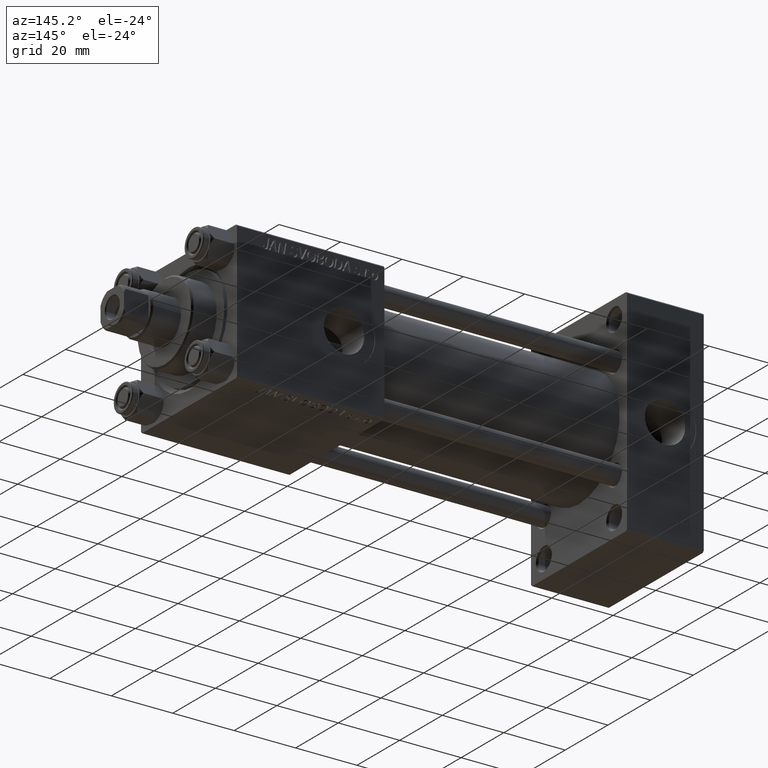
[diagram: clean part render]
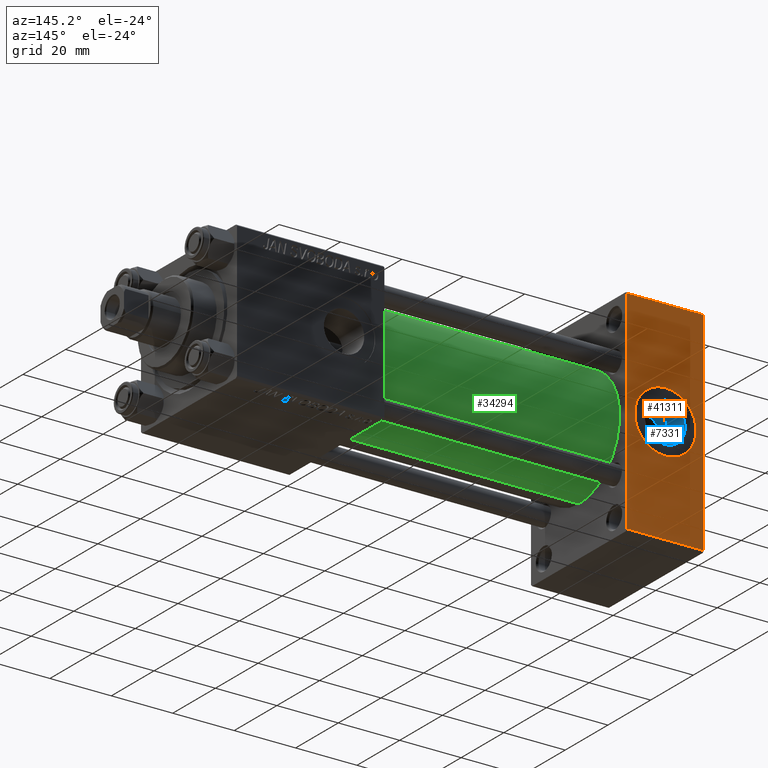
[diagram: same view with three faces highlighted in distinct colors, each labeled with its STEP entity id]
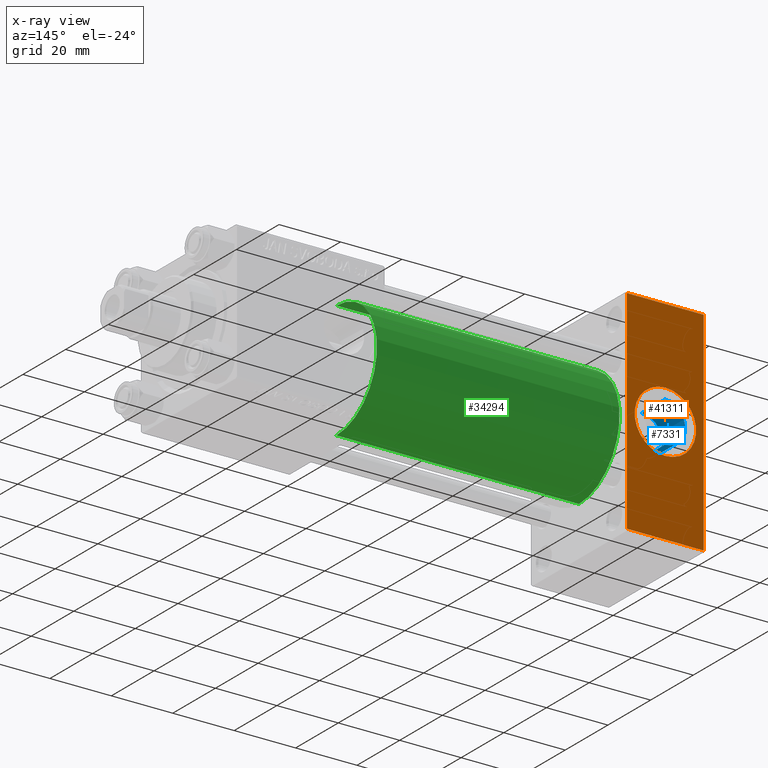
[diagram: x-ray of the same camera — body ghosted, the three highlighted faces saturated]
A machine part, auxiliary view with three faces highlighted in distinct colors.
The next image is the same camera in x-ray (body ghosted, the three faces saturated) — at least one of them is partly hidden behind the body in this view.
Their STEP definitions:

[orange] entity #41311 — the highlighted planar face has unit normal (0, 1, 0).
#345 = VECTOR ( 'NONE', #34564, 1000.000000000000000 ) ;
#794 = CARTESIAN_POINT ( 'NONE',  ( 12.50000000000000000, 22.50000000000000355, 0.000000000000000000 ) ) ;
#1786 = CARTESIAN_POINT ( 'NONE',  ( 12.50000000000000000, 22.50000000000000355, 0.000000000000000000 ) ) ;
#2866 = LINE ( 'NONE', #7136, #28806 ) ;
#2937 = AXIS2_PLACEMENT_3D ( 'NONE', #794, #4334, #12391 ) ;
#3780 = LINE ( 'NONE', #19133, #345 ) ;
#4334 = DIRECTION ( 'NONE',  ( 0.000000000000000000, 1.000000000000000000, 0.000000000000000000 ) ) ;
#6312 = ORIENTED_EDGE ( 'NONE', *, *, #8810, .T. ) ;
#7136 = CARTESIAN_POINT ( 'NONE',  ( 0.000000000000000000, 22.50000000000000355, 35.00000000000000711 ) ) ;
#7478 = PLANE ( 'NONE',  #28430 ) ;
#7597 = VECTOR ( 'NONE', #13164, 1000.000000000000000 ) ;
#8501 = CARTESIAN_POINT ( 'NONE',  ( 25.00000000000000000, 22.50000000000000355, 35.00000000000000711 ) ) ;
#8810 = EDGE_CURVE ( 'NONE', #15904, #39699, #3780, .T. ) ;
#9252 = LINE ( 'NONE', #8501, #29978 ) ;
#9720 = ORIENTED_EDGE ( 'NONE', *, *, #10227, .F. ) ;
#10227 = EDGE_CURVE ( 'NONE', #28005, #49620, #42315, .T. ) ;
#10415 = CARTESIAN_POINT ( 'NONE',  ( 0.000000000000000000, 22.50000000000000355, 34.49999999999999289 ) ) ;
#11316 = ORIENTED_EDGE ( 'NONE', *, *, #48421, .T. ) ;
#11503 = EDGE_LOOP ( 'NONE', ( #9720, #11942 ) ) ;
#11942 = ORIENTED_EDGE ( 'NONE', *, *, #14536, .F. ) ;
#12391 = DIRECTION ( 'NONE',  ( 0.000000000000000000, 0.000000000000000000, 1.000000000000000000 ) ) ;
#12406 = CARTESIAN_POINT ( 'NONE',  ( 25.00000000000000000, 22.50000000000000355, 34.49999999999999289 ) ) ;
#12747 = CARTESIAN_POINT ( 'NONE',  ( 25.00000000000000000, 22.50000000000000355, -34.49999999999999289 ) ) ;
#13164 = DIRECTION ( 'NONE',  ( -1.000000000000000000, 0.000000000000000000, 0.000000000000000000 ) ) ;
#14536 = EDGE_CURVE ( 'NONE', #49620, #28005, #31944, .T. ) ;
#15904 = VERTEX_POINT ( 'NONE', #10415 ) ;
#16699 = LINE ( 'NONE', #28575, #7597 ) ;
#16763 = VERTEX_POINT ( 'NONE', #17242 ) ;
#16890 = EDGE_CURVE ( 'NONE', #15904, #16763, #2866, .T. ) ;
#17242 = CARTESIAN_POINT ( 'NONE',  ( 0.000000000000000000, 22.50000000000000355, -34.49999999999999289 ) ) ;
#18071 = DIRECTION ( 'NONE',  ( -0.000000000000000000, 1.000000000000000000, 0.000000000000000000 ) ) ;
#19061 = CARTESIAN_POINT ( 'NONE',  ( 25.00000000000000000, 22.50000000000000355, 35.00000000000000711 ) ) ;
#19133 = CARTESIAN_POINT ( 'NONE',  ( 25.00000000000000000, 22.50000000000000355, 34.49999999999999289 ) ) ;
#19801 = VERTEX_POINT ( 'NONE', #12747 ) ;
#20190 = DIRECTION ( 'NONE',  ( 0.000000000000000000, 0.000000000000000000, 1.000000000000000000 ) ) ;
#20842 = DIRECTION ( 'NONE',  ( 0.000000000000000000, 0.000000000000000000, -1.000000000000000000 ) ) ;
#24592 = ORIENTED_EDGE ( 'NONE', *, *, #39218, .T. ) ;
#25406 = CARTESIAN_POINT ( 'NONE',  ( 12.50000000000000000, 22.50000000000000355, 9.999999999999996447 ) ) ;
#28005 = VERTEX_POINT ( 'NONE', #25406 ) ;
#28430 = AXIS2_PLACEMENT_3D ( 'NONE', #19061, #18071, #33497 ) ;
#28575 = CARTESIAN_POINT ( 'NONE',  ( 25.00000000000000000, 22.50000000000000355, -34.49999999999999289 ) ) ;
#28806 = VECTOR ( 'NONE', #37448, 1000.000000000000000 ) ;
#29978 = VECTOR ( 'NONE', #20842, 1000.000000000000000 ) ;
#31944 = CIRCLE ( 'NONE', #2937, 9.999999999999996447 ) ;
#33497 = DIRECTION ( 'NONE',  ( 0.000000000000000000, -0.000000000000000000, 1.000000000000000000 ) ) ;
#34564 = DIRECTION ( 'NONE',  ( 1.000000000000000000, 0.000000000000000000, 0.000000000000000000 ) ) ;
#35614 = DIRECTION ( 'NONE',  ( 0.000000000000000000, 1.000000000000000000, 0.000000000000000000 ) ) ;
#36052 = CARTESIAN_POINT ( 'NONE',  ( 12.50000000000000178, 22.50000000000000355, -9.999999999999996447 ) ) ;
#37448 = DIRECTION ( 'NONE',  ( 0.000000000000000000, 0.000000000000000000, -1.000000000000000000 ) ) ;
#37543 = FACE_BOUND ( 'NONE', #11503, .T. ) ;
#39218 = EDGE_CURVE ( 'NONE', #39699, #19801, #9252, .T. ) ;
#39699 = VERTEX_POINT ( 'NONE', #12406 ) ;
#41311 = ADVANCED_FACE ( 'NONE', ( #37543, #42091 ), #7478, .T. ) ;
#42091 = FACE_OUTER_BOUND ( 'NONE', #45863, .T. ) ;
#42315 = CIRCLE ( 'NONE', #49584, 9.999999999999996447 ) ;
#45863 = EDGE_LOOP ( 'NONE', ( #24592, #11316, #46625, #6312 ) ) ;
#46625 = ORIENTED_EDGE ( 'NONE', *, *, #16890, .F. ) ;
#48421 = EDGE_CURVE ( 'NONE', #19801, #16763, #16699, .T. ) ;
#49584 = AXIS2_PLACEMENT_3D ( 'NONE', #1786, #35614, #20190 ) ;
#49620 = VERTEX_POINT ( 'NONE', #36052 ) ;

[blue] entity #7331 — the highlighted cylindrical surface (edge-blend (fillet) strip) has radius 6.58 mm, axis along (0, 1, 0).
#4376 = FACE_OUTER_BOUND ( 'NONE', #21190, .T. ) ;
#5862 = CARTESIAN_POINT ( 'NONE',  ( 12.50000000000000000, 11.50000000000000355, 0.000000000000000000 ) ) ;
#6422 = VECTOR ( 'NONE', #26269, 1000.000000000000000 ) ;
#6494 = AXIS2_PLACEMENT_3D ( 'NONE', #24620, #17282, #39797 ) ;
#7331 = ADVANCED_FACE ( 'NONE', ( #4376 ), #35413, .F. ) ;
#9669 = DIRECTION ( 'NONE',  ( 0.000000000000000000, 1.000000000000000000, 0.000000000000000000 ) ) ;
#10519 = DIRECTION ( 'NONE',  ( -0.000000000000000000, 1.000000000000000000, -0.000000000000000000 ) ) ;
#10574 = VERTEX_POINT ( 'NONE', #25439 ) ;
#13477 = VECTOR ( 'NONE', #10519, 1000.000000000000000 ) ;
#13879 = CARTESIAN_POINT ( 'NONE',  ( 12.50000000000000000, 11.44000000000000128, -6.579999999999998295 ) ) ;
#14292 = AXIS2_PLACEMENT_3D ( 'NONE', #48575, #9669, #45020 ) ;
#14787 = LINE ( 'NONE', #33749, #13477 ) ;
#15092 = CIRCLE ( 'NONE', #14292, 6.579999999999998295 ) ;
#17282 = DIRECTION ( 'NONE',  ( -0.000000000000000000, -1.000000000000000000, -0.000000000000000000 ) ) ;
#20583 = EDGE_CURVE ( 'NONE', #30374, #26067, #14787, .T. ) ;
#20934 = CARTESIAN_POINT ( 'NONE',  ( 12.50000000000000000, 11.44000000000000128, 6.579999999999998295 ) ) ;
#21190 = EDGE_LOOP ( 'NONE', ( #29874, #43838, #21535, #25766 ) ) ;
#21535 = ORIENTED_EDGE ( 'NONE', *, *, #21940, .T. ) ;
#21940 = EDGE_CURVE ( 'NONE', #10574, #26067, #15092, .T. ) ;
#24620 = CARTESIAN_POINT ( 'NONE',  ( 12.50000000000000000, 11.44000000000000128, 0.000000000000000000 ) ) ;
#25439 = CARTESIAN_POINT ( 'NONE',  ( 12.50000000000000000, 22.30000000000000426, -6.579999999999998295 ) ) ;
#25766 = ORIENTED_EDGE ( 'NONE', *, *, #20583, .F. ) ;
#26067 = VERTEX_POINT ( 'NONE', #26547 ) ;
#26269 = DIRECTION ( 'NONE',  ( -0.000000000000000000, 1.000000000000000000, -0.000000000000000000 ) ) ;
#26547 = CARTESIAN_POINT ( 'NONE',  ( 12.50000000000000000, 22.30000000000000426, 6.579999999999998295 ) ) ;
#29299 = EDGE_CURVE ( 'NONE', #34970, #10574, #43139, .T. ) ;
#29874 = ORIENTED_EDGE ( 'NONE', *, *, #31651, .T. ) ;
#30374 = VERTEX_POINT ( 'NONE', #20934 ) ;
#31651 = EDGE_CURVE ( 'NONE', #30374, #34970, #46819, .T. ) ;
#31744 = CARTESIAN_POINT ( 'NONE',  ( 12.50000000000000000, 11.50000000000000355, -6.579999999999998295 ) ) ;
#33749 = CARTESIAN_POINT ( 'NONE',  ( 12.50000000000000000, 11.50000000000000355, 6.579999999999998295 ) ) ;
#34936 = AXIS2_PLACEMENT_3D ( 'NONE', #5862, #44273, #48561 ) ;
#34970 = VERTEX_POINT ( 'NONE', #13879 ) ;
#35413 = CYLINDRICAL_SURFACE ( 'NONE', #34936, 6.579999999999998295 ) ;
#39797 = DIRECTION ( 'NONE',  ( 0.000000000000000000, 0.000000000000000000, 1.000000000000000000 ) ) ;
#43139 = LINE ( 'NONE', #31744, #6422 ) ;
#43838 = ORIENTED_EDGE ( 'NONE', *, *, #29299, .T. ) ;
#44273 = DIRECTION ( 'NONE',  ( -0.000000000000000000, 1.000000000000000000, -0.000000000000000000 ) ) ;
#45020 = DIRECTION ( 'NONE',  ( 0.000000000000000000, 0.000000000000000000, 1.000000000000000000 ) ) ;
#46819 = CIRCLE ( 'NONE', #6494, 6.579999999999998295 ) ;
#48561 = DIRECTION ( 'NONE',  ( 0.000000000000000000, 0.000000000000000000, 1.000000000000000000 ) ) ;
#48575 = CARTESIAN_POINT ( 'NONE',  ( 12.50000000000000000, 22.30000000000000426, 0.000000000000000000 ) ) ;

[green] entity #34294 — the highlighted cylindrical surface (partial cylindrical patch) has radius 19 mm, axis along (-1, -0, -0).
#700 = DIRECTION ( 'NONE',  ( -1.000000000000000000, -0.000000000000000000, -0.000000000000000000 ) ) ;
#1500 = FACE_OUTER_BOUND ( 'NONE', #24097, .T. ) ;
#3915 = AXIS2_PLACEMENT_3D ( 'NONE', #4787, #35080, #8563 ) ;
#4229 = LINE ( 'NONE', #27195, #31529 ) ;
#4787 = CARTESIAN_POINT ( 'NONE',  ( 24.99999999999999289, -2.602085213965210642E-15, 0.000000000000000000 ) ) ;
#5841 = DIRECTION ( 'NONE',  ( -1.000000000000000000, -0.000000000000000000, -0.000000000000000000 ) ) ;
#8559 = CYLINDRICAL_SURFACE ( 'NONE', #44480, 19.00000000000000000 ) ;
#8563 = DIRECTION ( 'NONE',  ( 0.000000000000000000, 0.000000000000000000, 1.000000000000000000 ) ) ;
#8719 = CARTESIAN_POINT ( 'NONE',  ( 24.99999999999999289, -2.602085213965210642E-15, 19.00000000000000000 ) ) ;
#10348 = CIRCLE ( 'NONE', #3915, 19.00000000000000000 ) ;
#11293 = CARTESIAN_POINT ( 'NONE',  ( 24.99999999999999289, -2.752562955852396712E-16, -19.00000000000000000 ) ) ;
#12663 = CARTESIAN_POINT ( 'NONE',  ( 104.0000000000000142, -2.752562955852396712E-16, -19.00000000000000000 ) ) ;
#14942 = CARTESIAN_POINT ( 'NONE',  ( 104.0000000000000142, -2.602085213965210642E-15, 0.000000000000000000 ) ) ;
#15401 = EDGE_CURVE ( 'NONE', #47131, #24225, #48961, .T. ) ;
#17186 = LINE ( 'NONE', #12663, #44200 ) ;
#18072 = EDGE_CURVE ( 'NONE', #47131, #43315, #17186, .T. ) ;
#18117 = ORIENTED_EDGE ( 'NONE', *, *, #18072, .T. ) ;
#24097 = EDGE_LOOP ( 'NONE', ( #47556, #18117, #27259, #34719 ) ) ;
#24225 = VERTEX_POINT ( 'NONE', #34368 ) ;
#26806 = EDGE_CURVE ( 'NONE', #43315, #41397, #10348, .T. ) ;
#27195 = CARTESIAN_POINT ( 'NONE',  ( 104.0000000000000142, -2.602085213965210642E-15, 19.00000000000000000 ) ) ;
#27259 = ORIENTED_EDGE ( 'NONE', *, *, #26806, .T. ) ;
#30355 = DIRECTION ( 'NONE',  ( 1.000000000000000000, 0.000000000000000000, 0.000000000000000000 ) ) ;
#30901 = DIRECTION ( 'NONE',  ( -1.000000000000000000, -0.000000000000000000, -0.000000000000000000 ) ) ;
#31529 = VECTOR ( 'NONE', #700, 1000.000000000000000 ) ;
#34294 = ADVANCED_FACE ( 'NONE', ( #1500 ), #8559, .T. ) ;
#34368 = CARTESIAN_POINT ( 'NONE',  ( 104.0000000000000142, -2.602085213965210642E-15, 19.00000000000000000 ) ) ;
#34719 = ORIENTED_EDGE ( 'NONE', *, *, #37083, .F. ) ;
#35080 = DIRECTION ( 'NONE',  ( 1.000000000000000000, -0.000000000000000000, 0.000000000000000000 ) ) ;
#36210 = CARTESIAN_POINT ( 'NONE',  ( 104.0000000000000142, -2.752562955852396712E-16, -19.00000000000000000 ) ) ;
#37083 = EDGE_CURVE ( 'NONE', #24225, #41397, #4229, .T. ) ;
#38757 = DIRECTION ( 'NONE',  ( 0.000000000000000000, 0.000000000000000000, 1.000000000000000000 ) ) ;
#41397 = VERTEX_POINT ( 'NONE', #8719 ) ;
#43315 = VERTEX_POINT ( 'NONE', #11293 ) ;
#44200 = VECTOR ( 'NONE', #5841, 1000.000000000000000 ) ;
#44480 = AXIS2_PLACEMENT_3D ( 'NONE', #46839, #30901, #38757 ) ;
#44912 = AXIS2_PLACEMENT_3D ( 'NONE', #14942, #30355, #45790 ) ;
#45790 = DIRECTION ( 'NONE',  ( 0.000000000000000000, 0.000000000000000000, -1.000000000000000000 ) ) ;
#46839 = CARTESIAN_POINT ( 'NONE',  ( 104.0000000000000142, -2.602085213965210642E-15, 0.000000000000000000 ) ) ;
#47131 = VERTEX_POINT ( 'NONE', #36210 ) ;
#47556 = ORIENTED_EDGE ( 'NONE', *, *, #15401, .F. ) ;
#48961 = CIRCLE ( 'NONE', #44912, 19.00000000000000000 ) ;